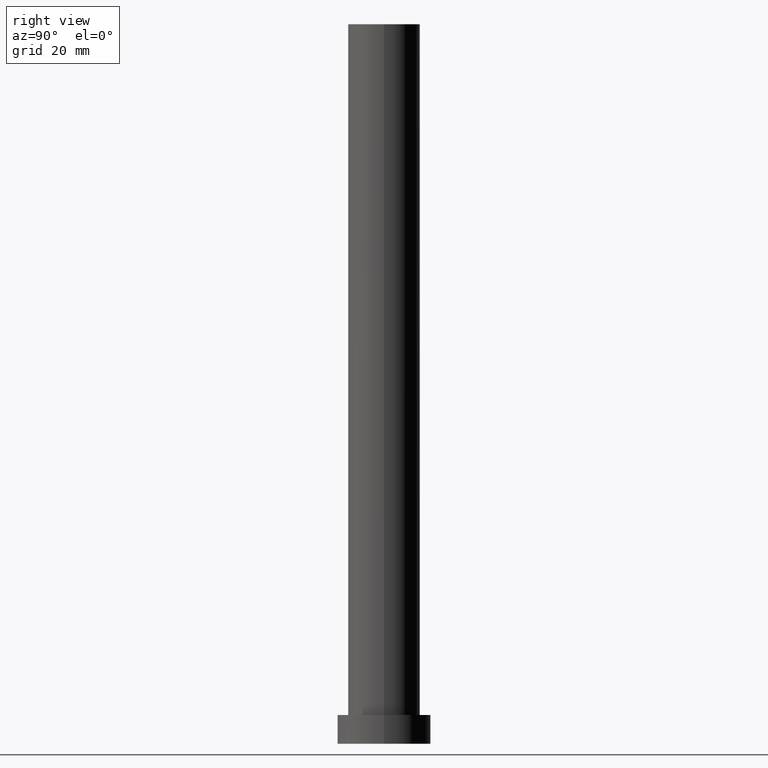
[diagram: clean part render]
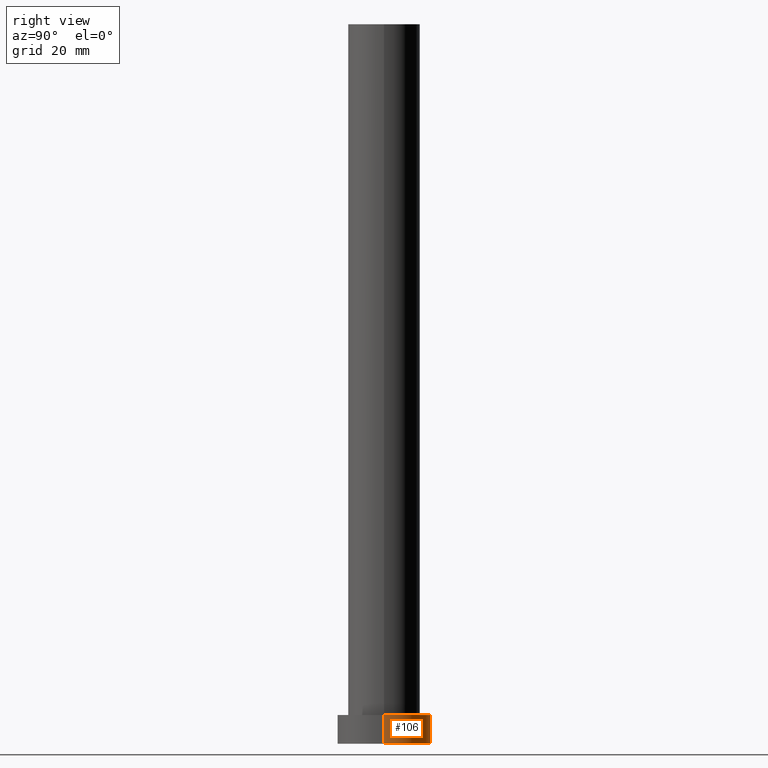
[diagram: same view with one face highlighted and labeled with its STEP entity id]
A machine part, right view. The second image highlights one B-rep face of the part: STEP entity #106.
In plain terms, the highlighted cylindrical surface (partial cylindrical patch) has radius 13 mm, axis along (-0, -0, -1).
Its self-contained STEP definition (entity closure, byte-faithful):
#9 = CARTESIAN_POINT ( 'NONE',  ( 13.00000000000000178, 1.592040838891559293E-15, 8.000000000000000000 ) ) ;
#17 = CARTESIAN_POINT ( 'NONE',  ( -13.00000000000000178, 0.000000000000000000, 8.000000000000000000 ) ) ;
#24 = DIRECTION ( 'NONE',  ( -0.000000000000000000, -0.000000000000000000, -1.000000000000000000 ) ) ;
#41 = CARTESIAN_POINT ( 'NONE',  ( -13.00000000000000178, 0.000000000000000000, 0.000000000000000000 ) ) ;
#44 = FACE_OUTER_BOUND ( 'NONE', #162, .T. ) ;
#48 = VERTEX_POINT ( 'NONE', #194 ) ;
#59 = CARTESIAN_POINT ( 'NONE',  ( 13.00000000000000178, 1.592040838891559293E-15, 0.000000000000000000 ) ) ;
#62 = DIRECTION ( 'NONE',  ( -0.000000000000000000, -0.000000000000000000, -1.000000000000000000 ) ) ;
#74 = EDGE_CURVE ( 'NONE', #216, #120, #236, .T. ) ;
#88 = VERTEX_POINT ( 'NONE', #59 ) ;
#97 = EDGE_CURVE ( 'NONE', #48, #88, #187, .T. ) ;
#106 = ADVANCED_FACE ( 'NONE', ( #44 ), #119, .T. ) ;
#116 = CARTESIAN_POINT ( 'NONE',  ( 0.000000000000000000, 0.000000000000000000, 0.000000000000000000 ) ) ;
#119 = CYLINDRICAL_SURFACE ( 'NONE', #170, 13.00000000000000178 ) ;
#120 = VERTEX_POINT ( 'NONE', #41 ) ;
#121 = DIRECTION ( 'NONE',  ( 0.000000000000000000, 0.000000000000000000, 1.000000000000000000 ) ) ;
#123 = CARTESIAN_POINT ( 'NONE',  ( 0.000000000000000000, 0.000000000000000000, 8.000000000000000000 ) ) ;
#137 = DIRECTION ( 'NONE',  ( -0.000000000000000000, -0.000000000000000000, -1.000000000000000000 ) ) ;
#138 = DIRECTION ( 'NONE',  ( -1.000000000000000000, 0.000000000000000000, 0.000000000000000000 ) ) ;
#144 = ORIENTED_EDGE ( 'NONE', *, *, #160, .F. ) ;
#148 = CARTESIAN_POINT ( 'NONE',  ( 0.000000000000000000, 0.000000000000000000, 8.000000000000000000 ) ) ;
#154 = AXIS2_PLACEMENT_3D ( 'NONE', #148, #121, #203 ) ;
#160 = EDGE_CURVE ( 'NONE', #48, #216, #213, .T. ) ;
#162 = EDGE_LOOP ( 'NONE', ( #144, #223, #205, #242 ) ) ;
#167 = DIRECTION ( 'NONE',  ( 0.000000000000000000, 0.000000000000000000, 1.000000000000000000 ) ) ;
#170 = AXIS2_PLACEMENT_3D ( 'NONE', #123, #62, #138 ) ;
#187 = LINE ( 'NONE', #9, #231 ) ;
#189 = AXIS2_PLACEMENT_3D ( 'NONE', #116, #167, #198 ) ;
#194 = CARTESIAN_POINT ( 'NONE',  ( 13.00000000000000178, 1.592040838891559293E-15, 8.000000000000000000 ) ) ;
#198 = DIRECTION ( 'NONE',  ( 1.000000000000000000, 0.000000000000000000, 0.000000000000000000 ) ) ;
#203 = DIRECTION ( 'NONE',  ( 1.000000000000000000, 0.000000000000000000, 0.000000000000000000 ) ) ;
#205 = ORIENTED_EDGE ( 'NONE', *, *, #221, .T. ) ;
#213 = CIRCLE ( 'NONE', #154, 13.00000000000000178 ) ;
#215 = CARTESIAN_POINT ( 'NONE',  ( -13.00000000000000178, 0.000000000000000000, 8.000000000000000000 ) ) ;
#216 = VERTEX_POINT ( 'NONE', #215 ) ;
#221 = EDGE_CURVE ( 'NONE', #88, #120, #237, .T. ) ;
#223 = ORIENTED_EDGE ( 'NONE', *, *, #97, .T. ) ;
#231 = VECTOR ( 'NONE', #24, 1000.000000000000000 ) ;
#236 = LINE ( 'NONE', #17, #245 ) ;
#237 = CIRCLE ( 'NONE', #189, 13.00000000000000178 ) ;
#242 = ORIENTED_EDGE ( 'NONE', *, *, #74, .F. ) ;
#245 = VECTOR ( 'NONE', #137, 1000.000000000000000 ) ;